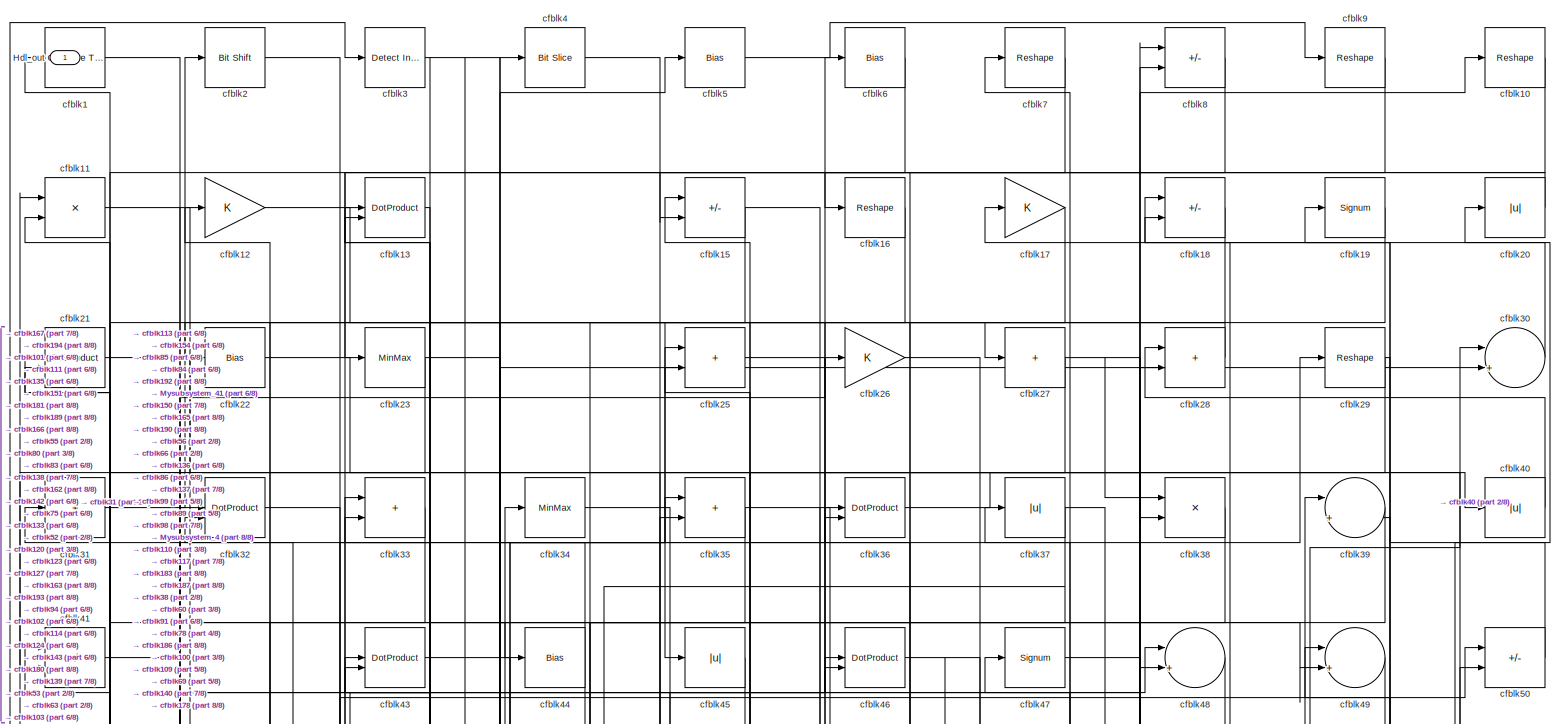
[diagram: root canvas - part 1/8, full width, top band]
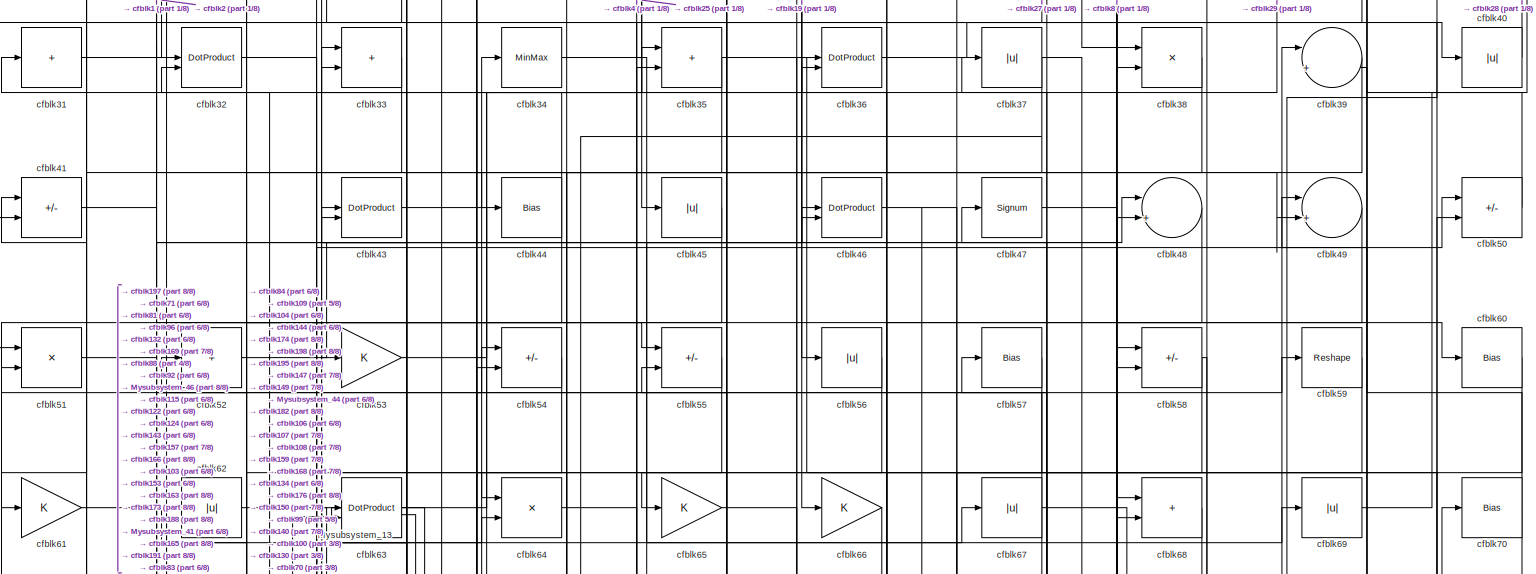
[diagram: root canvas - part 2/8, full width, top band]
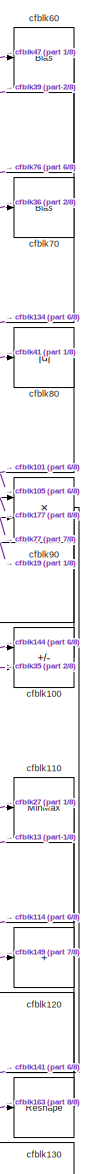
[diagram: root canvas - part 3/8, middle right region]
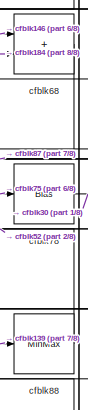
[diagram: root canvas - part 4/8, middle right region]
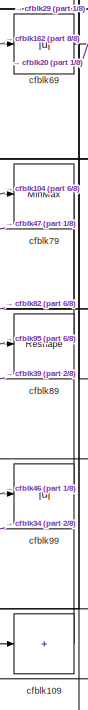
[diagram: root canvas - part 5/8, middle right region]
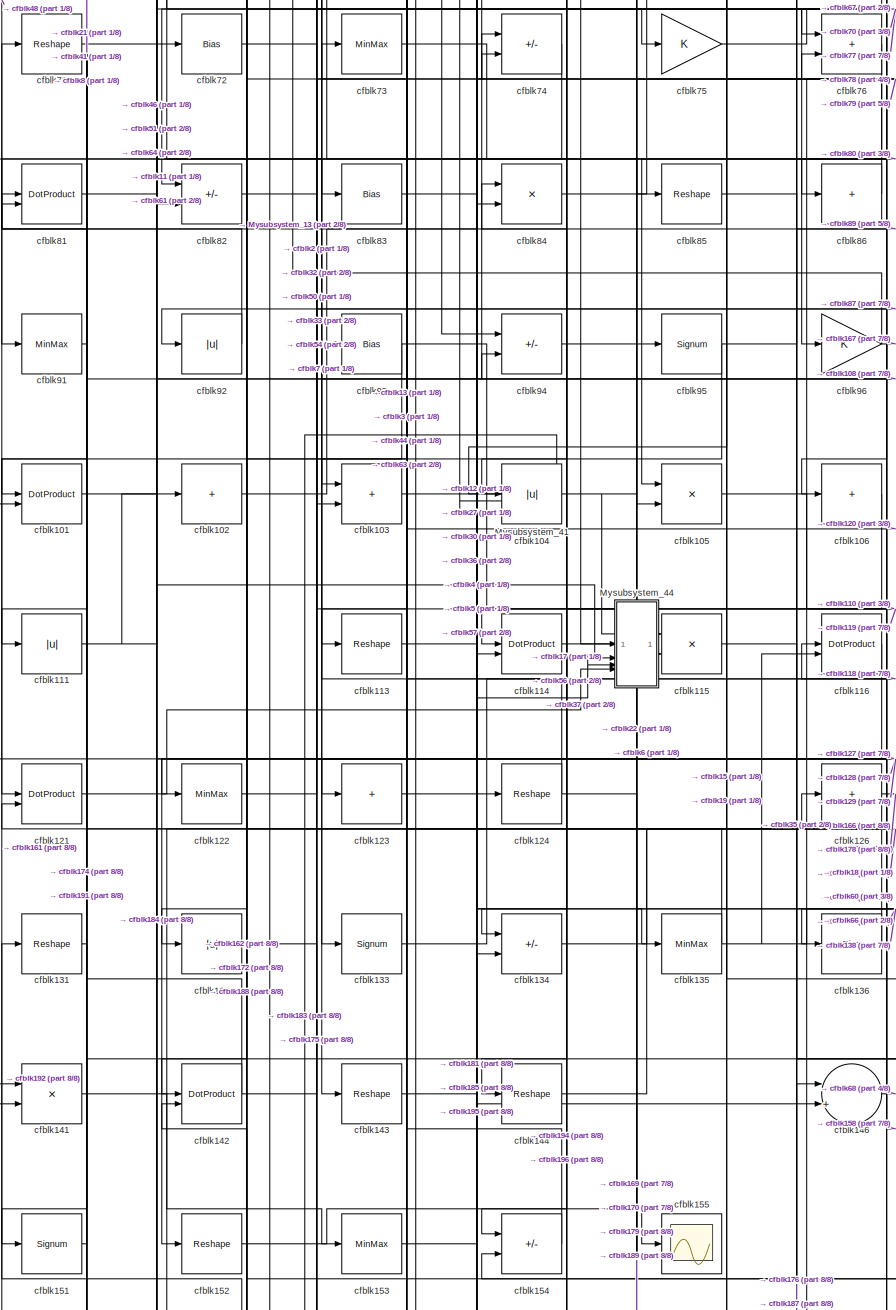
[diagram: root canvas - part 6/8, middle left region]
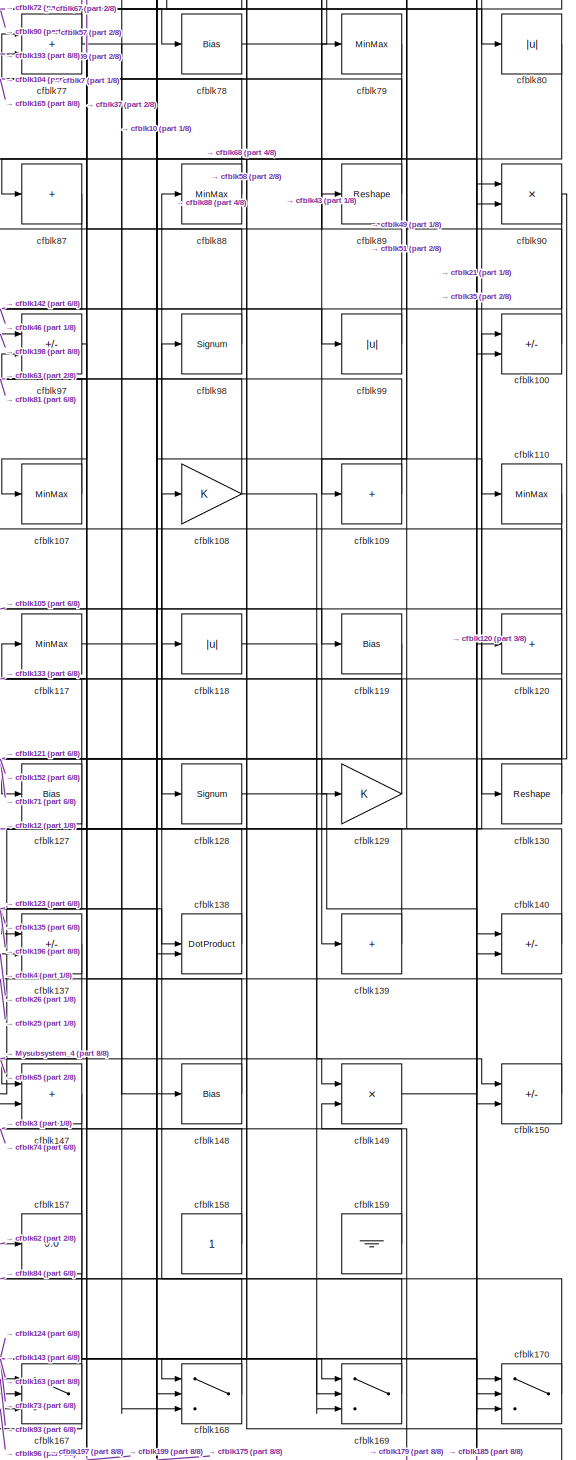
[diagram: root canvas - part 7/8, middle right region]
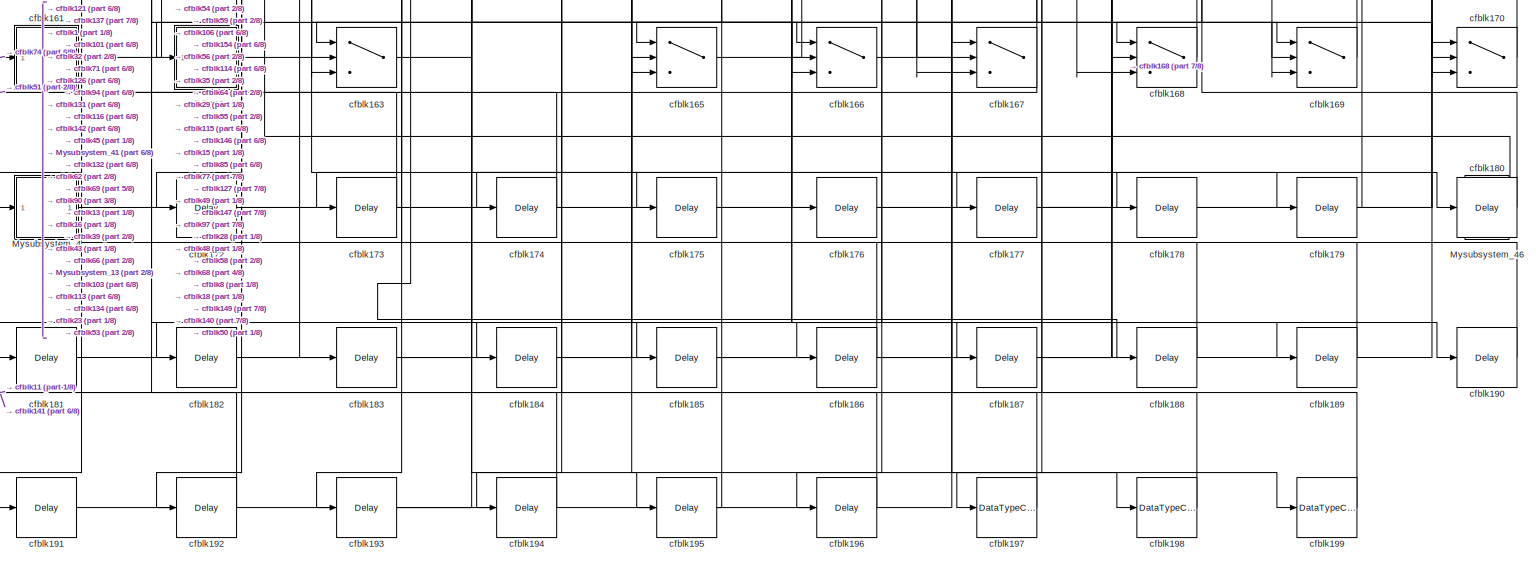
[diagram: root canvas - part 8/8, full width, bottom band]
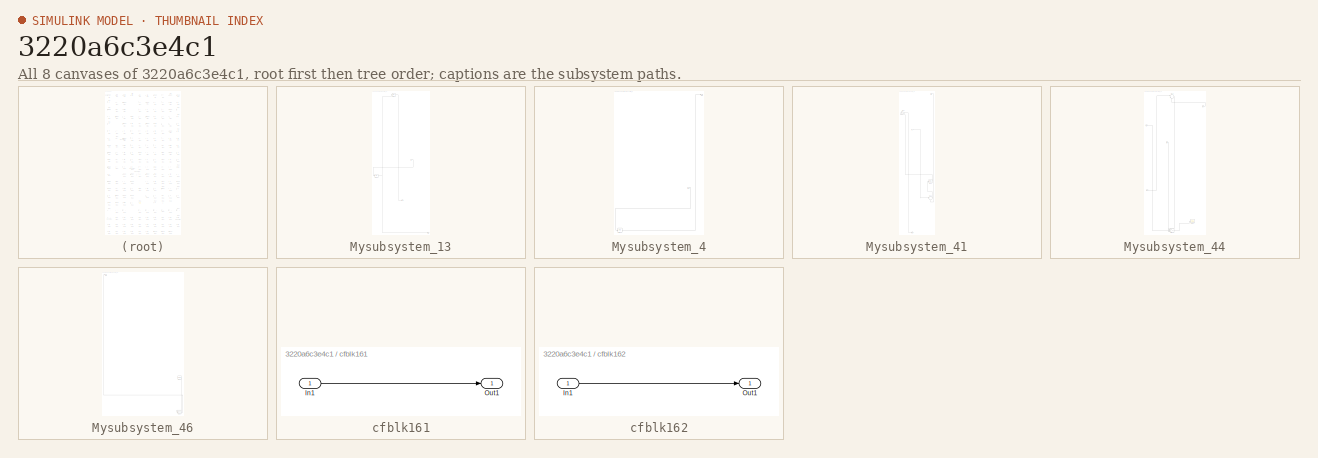
[diagram: thumbnail index - all 8 canvases of the model, root first then tree order]
MODEL slx_3220a6c3e4c1
KIND model
CONFIG AbsTol = auto
CONFIG EnableMultiTasking = off
CONFIG FixedStep = auto
CONFIG MaxStep = auto
CONFIG MinStep = auto
CONFIG RelTol = 1e-3
CONFIG SampleTimeConstraint = Unconstrained
CONFIG SolverName = VariableStepAuto
CONFIG StartTime = 0.0
CONFIG StopTime = 10.0
BLOCK [Outport] Hdl_out
  OutDataTypeStr = uint8
BLOCK [SubSystem] Mysubsystem_13
  RTWFcnName = Mysubsystem_13
  RTWFcnNameOpts = User specified
  RTWFileNameOpts = Use function name
  RTWSystemCode = Reusable function
  TreatAsAtomicUnit = on
BLOCK [Inport] Mysubsystem_13/In1
BLOCK [Outport] Mysubsystem_13/Out1
BLOCK [Outport] Mysubsystem_13/Out2
  Port = 2
BLOCK [Bias] Mysubsystem_13/cfblk112
  Bias = 0.0
  SaturateOnIntegerOverflow = off
BLOCK [Bias] Mysubsystem_13/cfblk14
  Bias = 0.0
  SaturateOnIntegerOverflow = off
BLOCK [SubSystem] Mysubsystem_4
  RTWFcnName = Mysubsystem_4
  RTWFcnNameOpts = User specified
  RTWFileNameOpts = Use function name
  RTWSystemCode = Reusable function
  TreatAsAtomicUnit = on
BLOCK [Inport] Mysubsystem_4/In1
BLOCK [Outport] Mysubsystem_4/Out1
BLOCK [Delay] Mysubsystem_4/cfblk171
  InputPortMap = u0
  SampleTime = 1
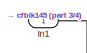
[diagram: Mysubsystem_41 - part 1/4, top right region]
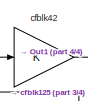
[diagram: Mysubsystem_41 - part 2/4, top left region]
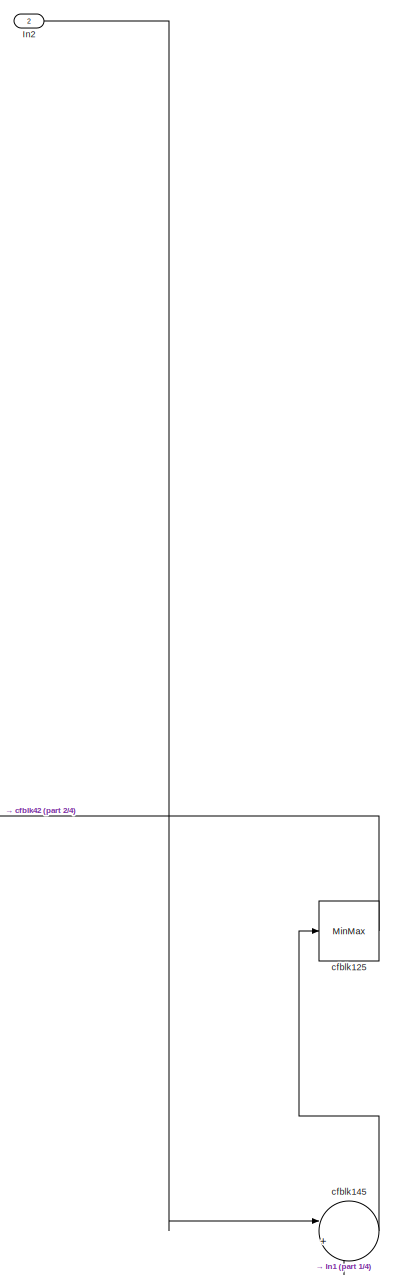
[diagram: Mysubsystem_41 - part 3/4, central region]
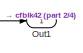
[diagram: Mysubsystem_41 - part 4/4, bottom center region]
BLOCK [SubSystem] Mysubsystem_41
  RTWFcnName = Mysubsystem_41
  RTWFcnNameOpts = User specified
  RTWFileNameOpts = Use function name
  RTWSystemCode = Reusable function
  TreatAsAtomicUnit = on
BLOCK [Inport] Mysubsystem_41/In1
BLOCK [Inport] Mysubsystem_41/In2
  Port = 2
BLOCK [Outport] Mysubsystem_41/Out1
BLOCK [MinMax] Mysubsystem_41/cfblk125
BLOCK [Sum] Mysubsystem_41/cfblk145
  Inputs = |++
BLOCK [Gain] Mysubsystem_41/cfblk42
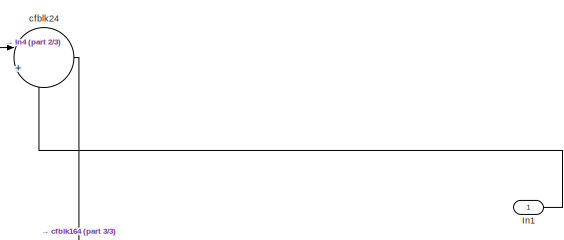
[diagram: Mysubsystem_44 - part 1/3, top right region]
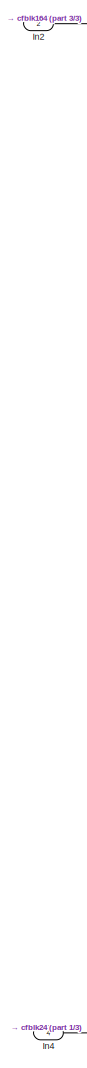
[diagram: Mysubsystem_44 - part 2/3, middle left region]
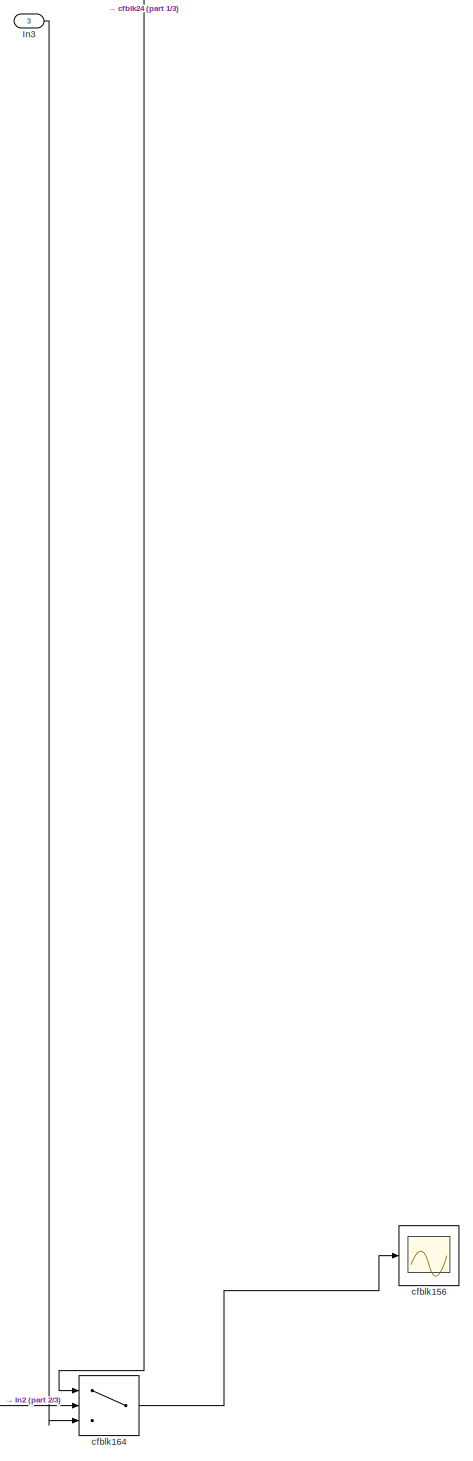
[diagram: Mysubsystem_44 - part 3/3, bottom center region]
BLOCK [SubSystem] Mysubsystem_44
  RTWFcnName = Mysubsystem_44
  RTWFcnNameOpts = User specified
  RTWFileNameOpts = Use function name
  RTWSystemCode = Reusable function
  TreatAsAtomicUnit = on
BLOCK [Inport] Mysubsystem_44/In1
BLOCK [Inport] Mysubsystem_44/In2
  Port = 2
BLOCK [Inport] Mysubsystem_44/In3
  Port = 3
BLOCK [Inport] Mysubsystem_44/In4
  Port = 4
BLOCK [Scope] Mysubsystem_44/cfblk156
  Floating = off
  NumInputPorts = 1
  ScopeSpecificationString = Simulink.scopes.TimeScopeBlockCfg('CurrentConfiguration', extmgr.ConfigurationSet(extmgr.Configuration('Core','General UI',true),extmgr.Configuration('Core','Source UI',true),extmgr.Configuration('Sources','WiredSimulink',true,'DataLoggingVariableName','ScopeData2','DataLoggingSaveFormat','Array','DataLoggingLimitDataPoints',true,'DataLoggingDecimation','1'),extmgr.Configuration('Visuals','Time Do...<+868ch>
BLOCK [Switch] Mysubsystem_44/cfblk164
  InputSameDT = off
  SaturateOnIntegerOverflow = off
BLOCK [Sum] Mysubsystem_44/cfblk24
  Inputs = |++
BLOCK [SubSystem] Mysubsystem_46
  RTWFcnName = Mysubsystem_46
  RTWFcnNameOpts = User specified
  RTWFileNameOpts = Use function name
  RTWSystemCode = Reusable function
  TreatAsAtomicUnit = on
BLOCK [Outport] Mysubsystem_46/Out1
BLOCK [Reference] Mysubsystem_46/cfblk160  REF=hdlsllib/Sources/Counter
Free-Running
  SourceBlock = hdlsllib/Sources/Counter\nFree-Running
  SourceType = Counter Free-Running
BLOCK [DataTypeConversion] Mysubsystem_46/cfblk200
  OutDataTypeStr = uint8
  RndMeth = Floor
  SaturateOnIntegerOverflow = off
BLOCK [Reference] cfblk1  REF=hdlsllib/Logic and Bit
Operations/Compare
To Constant
  SourceBlock = hdlsllib/Logic and Bit\nOperations/Compare\nTo Constant
  SourceType = Compare To Constant
BLOCK [Reshape] cfblk10
BLOCK [Sum] cfblk100
  IconShape = rectangular
  Inputs = +-
  OutDataTypeStr = uint8
BLOCK [DotProduct] cfblk101
  OutDataTypeStr = uint8
BLOCK [Sum] cfblk102
  IconShape = rectangular
  Inputs = +
  OutDataTypeStr = uint8
BLOCK [Sum] cfblk103
  IconShape = rectangular
  OutDataTypeStr = uint8
BLOCK [Abs] cfblk104
  OutDataTypeStr = uint8
  SaturateOnIntegerOverflow = off
BLOCK [Product] cfblk105
  Inputs = */
  OutDataTypeStr = uint8
  RndMeth = Zero
  SaturateOnIntegerOverflow = on
BLOCK [Sum] cfblk106
  IconShape = rectangular
  Inputs = +
  OutDataTypeStr = uint8
BLOCK [MinMax] cfblk107
  OutDataTypeStr = uint8
BLOCK [Gain] cfblk108
  OutDataTypeStr = uint8
BLOCK [Sum] cfblk109
  IconShape = rectangular
  Inputs = +
  OutDataTypeStr = uint8
BLOCK [Product] cfblk11
  Inputs = */
  OutDataTypeStr = uint8
  RndMeth = Zero
  SaturateOnIntegerOverflow = on
BLOCK [MinMax] cfblk110
  OutDataTypeStr = uint8
BLOCK [Abs] cfblk111
  OutDataTypeStr = uint8
  SaturateOnIntegerOverflow = off
BLOCK [Reshape] cfblk113
BLOCK [DotProduct] cfblk114
  OutDataTypeStr = uint8
BLOCK [Product] cfblk115
  Inputs = */
  OutDataTypeStr = uint8
  RndMeth = Zero
  SaturateOnIntegerOverflow = on
BLOCK [DotProduct] cfblk116
  OutDataTypeStr = uint8
BLOCK [MinMax] cfblk117
  OutDataTypeStr = uint8
BLOCK [Abs] cfblk118
  OutDataTypeStr = uint8
  SaturateOnIntegerOverflow = off
BLOCK [Bias] cfblk119
  Bias = 0.0
  SaturateOnIntegerOverflow = off
BLOCK [Gain] cfblk12
  OutDataTypeStr = uint8
BLOCK [Sum] cfblk120
  IconShape = rectangular
  Inputs = +
  OutDataTypeStr = uint8
BLOCK [DotProduct] cfblk121
  OutDataTypeStr = uint8
BLOCK [MinMax] cfblk122
  OutDataTypeStr = uint8
BLOCK [Sum] cfblk123
  IconShape = rectangular
  Inputs = +
  OutDataTypeStr = uint8
BLOCK [Reshape] cfblk124
BLOCK [Sum] cfblk126
  IconShape = rectangular
  Inputs = +
  OutDataTypeStr = uint8
BLOCK [Bias] cfblk127
  Bias = 0.0
  SaturateOnIntegerOverflow = off
BLOCK [Signum] cfblk128
BLOCK [Gain] cfblk129
  OutDataTypeStr = uint8
BLOCK [DotProduct] cfblk13
  OutDataTypeStr = uint8
BLOCK [Reshape] cfblk130
BLOCK [Reshape] cfblk131
BLOCK [Abs] cfblk132
  OutDataTypeStr = uint8
  SaturateOnIntegerOverflow = off
BLOCK [Signum] cfblk133
BLOCK [Sum] cfblk134
  IconShape = rectangular
  Inputs = +-
  OutDataTypeStr = uint8
BLOCK [MinMax] cfblk135
  OutDataTypeStr = uint8
BLOCK [Bias] cfblk136
  Bias = 0.0
  SaturateOnIntegerOverflow = off
BLOCK [Sum] cfblk137
  IconShape = rectangular
  Inputs = +-
  OutDataTypeStr = uint8
BLOCK [DotProduct] cfblk138
  OutDataTypeStr = uint8
BLOCK [Sum] cfblk139
  IconShape = rectangular
  Inputs = +
  OutDataTypeStr = uint8
BLOCK [Sum] cfblk140
  IconShape = rectangular
  Inputs = +-
  OutDataTypeStr = uint8
BLOCK [Product] cfblk141
  Inputs = */
  OutDataTypeStr = uint8
  RndMeth = Zero
  SaturateOnIntegerOverflow = on
BLOCK [DotProduct] cfblk142
  OutDataTypeStr = uint8
BLOCK [Reshape] cfblk143
BLOCK [Reshape] cfblk144
BLOCK [Sum] cfblk146
  Inputs = |++
  OutDataTypeStr = uint8
BLOCK [Sum] cfblk147
  IconShape = rectangular
  OutDataTypeStr = uint8
BLOCK [Bias] cfblk148
  Bias = 0.0
  SaturateOnIntegerOverflow = off
BLOCK [Product] cfblk149
  Inputs = */
  OutDataTypeStr = uint8
  RndMeth = Zero
  SaturateOnIntegerOverflow = on
BLOCK [Sum] cfblk15
  IconShape = rectangular
  Inputs = +-
  OutDataTypeStr = uint8
BLOCK [Sum] cfblk150
  IconShape = rectangular
  Inputs = +-
  OutDataTypeStr = uint8
BLOCK [Signum] cfblk151
BLOCK [Reshape] cfblk152
BLOCK [MinMax] cfblk153
  OutDataTypeStr = uint8
BLOCK [Sum] cfblk154
  IconShape = rectangular
  Inputs = +-
  OutDataTypeStr = uint8
BLOCK [Scope] cfblk155
  Floating = off
  NumInputPorts = 1
  ScopeSpecificationString = Simulink.scopes.TimeScopeBlockCfg('CurrentConfiguration', extmgr.ConfigurationSet(extmgr.Configuration('Core','General UI',true),extmgr.Configuration('Core','Source UI',true),extmgr.Configuration('Sources','WiredSimulink',true,'DataLoggingVariableName','ScopeData2','DataLoggingSaveFormat','Array','DataLoggingLimitDataPoints',true,'DataLoggingDecimation','1'),extmgr.Configuration('Visuals','Time Do...<+868ch>
BLOCK [Display] cfblk157
  Decimation = 1
BLOCK [Constant] cfblk158
  OutDataTypeStr = uint8
  SampleTime = -1
BLOCK [Ground] cfblk159
BLOCK [Reshape] cfblk16
BLOCK [SubSystem] cfblk161
  LibrarySourceBlock = hdlsllib/Ports &\nSubsystems/Subsystem
BLOCK [Inport] cfblk161/In1
BLOCK [Outport] cfblk161/Out1
BLOCK [SubSystem] cfblk162
  LibrarySourceBlock = hdlsllib/Ports &\nSubsystems/Subsystem
BLOCK [Inport] cfblk162/In1
BLOCK [Outport] cfblk162/Out1
BLOCK [Switch] cfblk163
  InputSameDT = off
  OutDataTypeStr = uint8
  SaturateOnIntegerOverflow = off
BLOCK [Switch] cfblk165
  InputSameDT = off
  OutDataTypeStr = uint8
  SaturateOnIntegerOverflow = off
BLOCK [Switch] cfblk166
  InputSameDT = off
  OutDataTypeStr = uint8
  SaturateOnIntegerOverflow = off
BLOCK [Switch] cfblk167
  InputSameDT = off
  OutDataTypeStr = uint8
  SaturateOnIntegerOverflow = off
BLOCK [Switch] cfblk168
  InputSameDT = off
  OutDataTypeStr = uint8
  SaturateOnIntegerOverflow = off
BLOCK [Switch] cfblk169
  InputSameDT = off
  OutDataTypeStr = uint8
  SaturateOnIntegerOverflow = off
BLOCK [Gain] cfblk17
  OutDataTypeStr = uint8
BLOCK [Switch] cfblk170
  InputSameDT = off
  OutDataTypeStr = uint8
  SaturateOnIntegerOverflow = off
BLOCK [Delay] cfblk172
  InputPortMap = u0
  SampleTime = 1
BLOCK [Delay] cfblk173
  InputPortMap = u0
  SampleTime = 1
BLOCK [Delay] cfblk174
  InputPortMap = u0
  SampleTime = 1
BLOCK [Delay] cfblk175
  InputPortMap = u0
  SampleTime = 1
BLOCK [Delay] cfblk176
  InputPortMap = u0
  SampleTime = 1
BLOCK [Delay] cfblk177
  InputPortMap = u0
  SampleTime = 1
BLOCK [Delay] cfblk178
  InputPortMap = u0
  SampleTime = 1
BLOCK [Delay] cfblk179
  InputPortMap = u0
  SampleTime = 1
BLOCK [Sum] cfblk18
  IconShape = rectangular
  Inputs = +-
  OutDataTypeStr = uint8
BLOCK [Delay] cfblk180
  InputPortMap = u0
  SampleTime = 1
BLOCK [Delay] cfblk181
  InputPortMap = u0
  SampleTime = 1
BLOCK [Delay] cfblk182
  InputPortMap = u0
  SampleTime = 1
BLOCK [Delay] cfblk183
  InputPortMap = u0
  SampleTime = 1
BLOCK [Delay] cfblk184
  InputPortMap = u0
  SampleTime = 1
BLOCK [Delay] cfblk185
  InputPortMap = u0
  SampleTime = 1
BLOCK [Delay] cfblk186
  InputPortMap = u0
  SampleTime = 1
BLOCK [Delay] cfblk187
  InputPortMap = u0
  SampleTime = 1
BLOCK [Delay] cfblk188
  InputPortMap = u0
  SampleTime = 1
BLOCK [Delay] cfblk189
  InputPortMap = u0
  SampleTime = 1
BLOCK [Signum] cfblk19
BLOCK [Delay] cfblk190
  InputPortMap = u0
  SampleTime = 1
BLOCK [Delay] cfblk191
  InputPortMap = u0
  SampleTime = 1
BLOCK [Delay] cfblk192
  InputPortMap = u0
  SampleTime = 1
BLOCK [Delay] cfblk193
  InputPortMap = u0
  SampleTime = 1
BLOCK [Delay] cfblk194
  InputPortMap = u0
  SampleTime = 1
BLOCK [Delay] cfblk195
  InputPortMap = u0
  SampleTime = 1
BLOCK [Delay] cfblk196
  InputPortMap = u0
  SampleTime = 1
BLOCK [DataTypeConversion] cfblk197
  OutDataTypeStr = uint8
  RndMeth = Floor
  SaturateOnIntegerOverflow = off
BLOCK [DataTypeConversion] cfblk198
  OutDataTypeStr = uint8
  RndMeth = Floor
  SaturateOnIntegerOverflow = off
BLOCK [DataTypeConversion] cfblk199
  OutDataTypeStr = uint8
  RndMeth = Floor
  SaturateOnIntegerOverflow = off
BLOCK [Reference] cfblk2  REF=hdlsllib/Logic and Bit
Operations/Bit Shift
  SourceBlock = hdlsllib/Logic and Bit\nOperations/Bit Shift
  SourceType = Bit Shift
BLOCK [Abs] cfblk20
  OutDataTypeStr = uint8
  SaturateOnIntegerOverflow = off
BLOCK [DotProduct] cfblk21
  OutDataTypeStr = uint8
BLOCK [Bias] cfblk22
  Bias = 0.0
  SaturateOnIntegerOverflow = off
BLOCK [MinMax] cfblk23
  OutDataTypeStr = uint8
BLOCK [Sum] cfblk25
  IconShape = rectangular
  OutDataTypeStr = uint8
BLOCK [Gain] cfblk26
  OutDataTypeStr = uint8
BLOCK [Sum] cfblk27
  IconShape = rectangular
  Inputs = +
  OutDataTypeStr = uint8
BLOCK [Sum] cfblk28
  IconShape = rectangular
  OutDataTypeStr = uint8
BLOCK [Reshape] cfblk29
BLOCK [Reference] cfblk3  REF=simulink/Logic and Bit
Operations/Detect
Increase
  LibrarySourceBlock = hdlsllib/Logic and Bit\nOperations/Detect\nIncrease
  SourceBlock = simulink/Logic and Bit\nOperations/Detect\nIncrease
  SourceType = Detect Increase
BLOCK [Sum] cfblk30
  Inputs = |++
  OutDataTypeStr = uint8
BLOCK [Sum] cfblk31
  IconShape = rectangular
  Inputs = +
  OutDataTypeStr = uint8
BLOCK [DotProduct] cfblk32
  OutDataTypeStr = uint8
BLOCK [Sum] cfblk33
  IconShape = rectangular
  OutDataTypeStr = uint8
BLOCK [MinMax] cfblk34
  OutDataTypeStr = uint8
BLOCK [Sum] cfblk35
  IconShape = rectangular
  OutDataTypeStr = uint8
BLOCK [DotProduct] cfblk36
  OutDataTypeStr = uint8
BLOCK [Abs] cfblk37
  OutDataTypeStr = uint8
  SaturateOnIntegerOverflow = off
BLOCK [Product] cfblk38
  Inputs = */
  OutDataTypeStr = uint8
  RndMeth = Zero
  SaturateOnIntegerOverflow = on
BLOCK [Sum] cfblk39
  Inputs = |++
  OutDataTypeStr = uint8
BLOCK [Reference] cfblk4  REF=hdlsllib/Logic and Bit
Operations/Bit Slice
  SourceBlock = hdlsllib/Logic and Bit\nOperations/Bit Slice
  SourceType = Bit Slice
BLOCK [Abs] cfblk40
  OutDataTypeStr = uint8
  SaturateOnIntegerOverflow = off
BLOCK [Sum] cfblk41
  IconShape = rectangular
  Inputs = +-
  OutDataTypeStr = uint8
BLOCK [DotProduct] cfblk43
  OutDataTypeStr = uint8
BLOCK [Bias] cfblk44
  Bias = 0.0
  SaturateOnIntegerOverflow = off
BLOCK [Abs] cfblk45
  OutDataTypeStr = uint8
  SaturateOnIntegerOverflow = off
BLOCK [DotProduct] cfblk46
  OutDataTypeStr = uint8
BLOCK [Signum] cfblk47
BLOCK [Sum] cfblk48
  Inputs = |++
  OutDataTypeStr = uint8
BLOCK [Sum] cfblk49
  Inputs = |++
  OutDataTypeStr = uint8
BLOCK [Bias] cfblk5
  Bias = 0.0
  SaturateOnIntegerOverflow = off
BLOCK [Sum] cfblk50
  IconShape = rectangular
  Inputs = +-
  OutDataTypeStr = uint8
BLOCK [Product] cfblk51
  Inputs = */
  OutDataTypeStr = uint8
  RndMeth = Zero
  SaturateOnIntegerOverflow = on
BLOCK [Sum] cfblk52
  IconShape = rectangular
  Inputs = +
  OutDataTypeStr = uint8
BLOCK [Gain] cfblk53
  OutDataTypeStr = uint8
BLOCK [Sum] cfblk54
  IconShape = rectangular
  Inputs = +-
  OutDataTypeStr = uint8
BLOCK [Sum] cfblk55
  IconShape = rectangular
  Inputs = +-
  OutDataTypeStr = uint8
BLOCK [Abs] cfblk56
  OutDataTypeStr = uint8
  SaturateOnIntegerOverflow = off
BLOCK [Bias] cfblk57
  Bias = 0.0
  SaturateOnIntegerOverflow = off
BLOCK [Sum] cfblk58
  IconShape = rectangular
  Inputs = +-
  OutDataTypeStr = uint8
BLOCK [Reshape] cfblk59
BLOCK [Bias] cfblk6
  Bias = 0.0
  SaturateOnIntegerOverflow = off
BLOCK [Bias] cfblk60
  Bias = 0.0
  SaturateOnIntegerOverflow = off
BLOCK [Gain] cfblk61
  OutDataTypeStr = uint8
BLOCK [Abs] cfblk62
  OutDataTypeStr = uint8
  SaturateOnIntegerOverflow = off
BLOCK [DotProduct] cfblk63
  OutDataTypeStr = uint8
BLOCK [Product] cfblk64
  Inputs = */
  OutDataTypeStr = uint8
  RndMeth = Zero
  SaturateOnIntegerOverflow = on
BLOCK [Gain] cfblk65
  OutDataTypeStr = uint8
BLOCK [Gain] cfblk66
  OutDataTypeStr = uint8
BLOCK [Abs] cfblk67
  OutDataTypeStr = uint8
  SaturateOnIntegerOverflow = off
BLOCK [Sum] cfblk68
  IconShape = rectangular
  OutDataTypeStr = uint8
BLOCK [Abs] cfblk69
  OutDataTypeStr = uint8
  SaturateOnIntegerOverflow = off
BLOCK [Reshape] cfblk7
BLOCK [Bias] cfblk70
  Bias = 0.0
  SaturateOnIntegerOverflow = off
BLOCK [Reshape] cfblk71
BLOCK [Bias] cfblk72
  Bias = 0.0
  SaturateOnIntegerOverflow = off
BLOCK [MinMax] cfblk73
  OutDataTypeStr = uint8
BLOCK [Sum] cfblk74
  IconShape = rectangular
  Inputs = +-
  OutDataTypeStr = uint8
BLOCK [Gain] cfblk75
  OutDataTypeStr = uint8
BLOCK [Sum] cfblk76
  IconShape = rectangular
  OutDataTypeStr = uint8
BLOCK [Sum] cfblk77
  IconShape = rectangular
  OutDataTypeStr = uint8
BLOCK [Bias] cfblk78
  Bias = 0.0
  SaturateOnIntegerOverflow = off
BLOCK [MinMax] cfblk79
  OutDataTypeStr = uint8
BLOCK [Sum] cfblk8
  IconShape = rectangular
  Inputs = +-
  OutDataTypeStr = uint8
BLOCK [Abs] cfblk80
  OutDataTypeStr = uint8
  SaturateOnIntegerOverflow = off
BLOCK [DotProduct] cfblk81
  OutDataTypeStr = uint8
BLOCK [Sum] cfblk82
  IconShape = rectangular
  Inputs = +-
  OutDataTypeStr = uint8
BLOCK [Bias] cfblk83
  Bias = 0.0
  SaturateOnIntegerOverflow = off
BLOCK [Product] cfblk84
  Inputs = */
  OutDataTypeStr = uint8
  RndMeth = Zero
  SaturateOnIntegerOverflow = on
BLOCK [Reshape] cfblk85
BLOCK [Sum] cfblk86
  IconShape = rectangular
  Inputs = +
  OutDataTypeStr = uint8
BLOCK [Sum] cfblk87
  IconShape = rectangular
  Inputs = +
  OutDataTypeStr = uint8
BLOCK [MinMax] cfblk88
  OutDataTypeStr = uint8
BLOCK [Reshape] cfblk89
BLOCK [Reshape] cfblk9
BLOCK [Product] cfblk90
  Inputs = */
  OutDataTypeStr = uint8
  RndMeth = Zero
  SaturateOnIntegerOverflow = on
BLOCK [MinMax] cfblk91
  OutDataTypeStr = uint8
BLOCK [Abs] cfblk92
  OutDataTypeStr = uint8
  SaturateOnIntegerOverflow = off
BLOCK [Bias] cfblk93
  Bias = 0.0
  SaturateOnIntegerOverflow = off
BLOCK [Sum] cfblk94
  IconShape = rectangular
  Inputs = +-
  OutDataTypeStr = uint8
BLOCK [Signum] cfblk95
BLOCK [Gain] cfblk96
  OutDataTypeStr = uint8
BLOCK [Sum] cfblk97
  IconShape = rectangular
  Inputs = +-
  OutDataTypeStr = uint8
BLOCK [Signum] cfblk98
BLOCK [Abs] cfblk99
  OutDataTypeStr = uint8
  SaturateOnIntegerOverflow = off
LINE Mysubsystem_13/In1:1 -> Mysubsystem_13/cfblk112:1
NET Mysubsystem_13/cfblk112:1 -> Mysubsystem_13/Out2:1, Mysubsystem_13/cfblk14:1
LINE Mysubsystem_13/cfblk14:1 -> Mysubsystem_13/Out1:1
LINE Mysubsystem_13:1 -> Mysubsystem_41:2
LINE Mysubsystem_13:2 -> cfblk188:1
LINE Mysubsystem_4/In1:1 -> Mysubsystem_4/cfblk171:1
LINE Mysubsystem_4/cfblk171:1 -> Mysubsystem_4/Out1:1
LINE Mysubsystem_41/In1:1 -> Mysubsystem_41/cfblk145:2
LINE Mysubsystem_41/In2:1 -> Mysubsystem_41/cfblk145:1
LINE Mysubsystem_41/cfblk125:1 -> Mysubsystem_41/cfblk42:1
LINE Mysubsystem_41/cfblk145:1 -> Mysubsystem_41/cfblk125:1
LINE Mysubsystem_41/cfblk42:1 -> Mysubsystem_41/Out1:1
LINE Mysubsystem_41:1 -> cfblk183:1
LINE Mysubsystem_44/In1:1 -> Mysubsystem_44/cfblk24:2
LINE Mysubsystem_44/In2:1 -> Mysubsystem_44/cfblk164:2
LINE Mysubsystem_44/In3:1 -> Mysubsystem_44/cfblk164:3
LINE Mysubsystem_44/In4:1 -> Mysubsystem_44/cfblk24:1
LINE Mysubsystem_44/cfblk164:1 -> Mysubsystem_44/cfblk156:1
LINE Mysubsystem_44/cfblk24:1 -> Mysubsystem_44/cfblk164:1
LINE Mysubsystem_46/cfblk160:1 -> Mysubsystem_46/cfblk200:1
LINE Mysubsystem_46/cfblk200:1 -> Mysubsystem_46/Out1:1
LINE Mysubsystem_46:1 -> cfblk32:2
LINE Mysubsystem_4:1 -> cfblk48:2
LINE cfblk100:1 -> cfblk19:1
NET cfblk101:1 -> cfblk184:1, cfblk46:2
LINE cfblk102:1 -> cfblk4:1
NET cfblk103:1 -> cfblk185:1, cfblk33:2
NET cfblk104:1 -> cfblk115:1, cfblk169:3, cfblk79:1
LINE cfblk105:1 -> cfblk119:1
LINE cfblk106:1 -> cfblk194:1
LINE cfblk107:1 -> cfblk63:1
NET cfblk108:1 -> cfblk170:3, cfblk57:1, cfblk81:2
LINE cfblk109:1 -> cfblk34:1
LINE cfblk10:1 -> cfblk86:1
LINE cfblk110:1 -> cfblk114:1
NET cfblk111:1 -> cfblk102:1, cfblk46:1, cfblk48:1
LINE cfblk113:1 -> cfblk195:1
LINE cfblk114:1 -> cfblk189:1
LINE cfblk115:1 -> cfblk176:1
LINE cfblk116:1 -> cfblk172:1
LINE cfblk117:1 -> cfblk10:1
LINE cfblk118:1 -> cfblk150:1
LINE cfblk119:1 -> cfblk152:1
NET cfblk11:1 -> cfblk44:1, cfblk83:1
NET cfblk120:1 -> cfblk13:1, cfblk141:2
NET cfblk121:1 -> Mysubsystem_44:4, cfblk127:1
LINE cfblk122:1 -> cfblk35:1
LINE cfblk123:1 -> cfblk138:1
NET cfblk124:1 -> cfblk170:2, cfblk33:1
LINE cfblk126:1 -> cfblk178:1
NET cfblk127:1 -> cfblk196:1, cfblk43:1
LINE cfblk128:1 -> cfblk170:1
LINE cfblk129:1 -> cfblk108:1
LINE cfblk12:1 -> cfblk124:1
NET cfblk130:1 -> cfblk36:1, cfblk70:1
LINE cfblk131:1 -> cfblk191:1
LINE cfblk132:1 -> cfblk175:1
NET cfblk133:1 -> cfblk118:1, cfblk30:2
LINE cfblk134:1 -> cfblk58:1
NET cfblk135:1 -> cfblk116:2, cfblk137:1, cfblk21:2
LINE cfblk136:1 -> cfblk73:1
LINE cfblk137:1 -> Mysubsystem_4:1
LINE cfblk138:1 -> cfblk12:1
LINE cfblk139:1 -> cfblk88:1
LINE cfblk13:1 -> cfblk123:1
NET cfblk140:1 -> cfblk49:1, cfblk51:2
LINE cfblk141:1 -> cfblk153:1
NET cfblk142:1 -> cfblk41:1, cfblk50:1
NET cfblk143:1 -> cfblk169:2, cfblk5:1
LINE cfblk144:1 -> cfblk100:1
NET cfblk146:1 -> cfblk116:1, cfblk68:1
LINE cfblk147:1 -> cfblk163:2
LINE cfblk148:1 -> cfblk117:1
LINE cfblk149:1 -> cfblk120:1
LINE cfblk150:1 -> cfblk25:2
LINE cfblk151:1 -> cfblk11:2
LINE cfblk152:1 -> cfblk155:1
NET cfblk153:1 -> cfblk146:2, cfblk63:2
LINE cfblk154:1 -> cfblk93:1
LINE cfblk158:1 -> cfblk81:1
LINE cfblk159:1 -> cfblk37:1
NET cfblk15:1 -> cfblk162:1, cfblk190:1
LINE cfblk161/In1:1 -> cfblk161/Out1:1
NET cfblk161:1 -> cfblk126:1, cfblk94:2
LINE cfblk162/In1:1 -> cfblk162/Out1:1
NET cfblk162:1 -> cfblk131:1, cfblk69:1
NET cfblk163:1 -> cfblk13:2, cfblk177:1, cfblk59:1
LINE cfblk165:1 -> cfblk77:1
LINE cfblk166:1 -> cfblk199:1
NET cfblk167:1 -> cfblk3:1, cfblk74:2
LINE cfblk168:1 -> cfblk98:1
LINE cfblk169:1 -> cfblk62:1
NET cfblk16:1 -> cfblk193:1, cfblk45:1
LINE cfblk170:1 -> cfblk84:1
LINE cfblk172:1 -> cfblk146:1
LINE cfblk173:1 -> cfblk51:1
LINE cfblk174:1 -> cfblk121:2
LINE cfblk175:1 -> cfblk168:2
LINE cfblk176:1 -> cfblk58:2
LINE cfblk177:1 -> cfblk90:1
LINE cfblk178:1 -> cfblk50:2
LINE cfblk179:1 -> cfblk149:2
LINE cfblk17:1 -> cfblk154:1
LINE cfblk180:1 -> cfblk18:2
LINE cfblk181:1 -> cfblk134:2
LINE cfblk182:1 -> cfblk35:2
LINE cfblk183:1 -> cfblk8:2
LINE cfblk184:1 -> cfblk68:2
LINE cfblk185:1 -> cfblk140:2
LINE cfblk186:1 -> cfblk165:2
LINE cfblk187:1 -> cfblk28:2
LINE cfblk188:1 -> cfblk142:2
LINE cfblk189:1 -> cfblk1:1
LINE cfblk18:1 -> cfblk136:1
LINE cfblk190:1 -> cfblk43:2
LINE cfblk191:1 -> cfblk54:2
LINE cfblk192:1 -> cfblk141:1
LINE cfblk193:1 -> cfblk77:2
LINE cfblk194:1 -> cfblk11:1
LINE cfblk195:1 -> cfblk55:2
LINE cfblk196:1 -> cfblk154:2
LINE cfblk197:1 -> cfblk32:1
LINE cfblk198:1 -> cfblk97:1
LINE cfblk199:1 -> cfblk97:2
NET cfblk19:1 -> Mysubsystem_41:1, cfblk101:1, cfblk66:1
NET cfblk1:1 -> cfblk166:1, cfblk55:1
LINE cfblk20:1 -> cfblk16:1
LINE cfblk21:1 -> cfblk140:1
LINE cfblk22:1 -> cfblk85:1
NET cfblk23:1 -> cfblk180:1, cfblk181:1
LINE cfblk25:1 -> cfblk56:1
LINE cfblk26:1 -> cfblk137:2
NET cfblk27:1 -> cfblk110:1, cfblk114:2, cfblk38:1, cfblk41:2
NET cfblk28:1 -> cfblk22:1, cfblk27:1
NET cfblk29:1 -> cfblk109:1, cfblk165:1
LINE cfblk2:1 -> cfblk75:1
LINE cfblk30:1 -> cfblk18:1
LINE cfblk31:1 -> cfblk2:1
LINE cfblk32:1 -> cfblk115:2
LINE cfblk33:1 -> cfblk92:1
LINE cfblk34:1 -> cfblk67:1
NET cfblk35:1 -> cfblk100:2, cfblk104:1, cfblk147:1
LINE cfblk36:1 -> cfblk40:1
NET cfblk37:1 -> Mysubsystem_44:1, cfblk144:1, cfblk168:3
LINE cfblk38:1 -> cfblk61:1
LINE cfblk39:1 -> cfblk173:1
NET cfblk3:1 -> cfblk103:1, cfblk49:2, cfblk94:1
LINE cfblk40:1 -> cfblk28:1
NET cfblk41:1 -> cfblk26:1, cfblk80:1
LINE cfblk43:1 -> cfblk139:1
NET cfblk44:1 -> cfblk103:2, cfblk113:1, cfblk21:1
LINE cfblk45:1 -> cfblk192:1
NET cfblk46:1 -> cfblk167:2, cfblk99:1
LINE cfblk47:1 -> cfblk60:1
LINE cfblk48:1 -> cfblk91:1
LINE cfblk49:1 -> cfblk186:1
NET cfblk4:1 -> cfblk138:2, cfblk38:2
LINE cfblk50:1 -> cfblk17:1
NET cfblk51:1 -> Mysubsystem_44:2, cfblk53:1
LINE cfblk52:1 -> cfblk8:1
NET cfblk53:1 -> cfblk165:3, cfblk29:1
LINE cfblk54:1 -> cfblk143:1
LINE cfblk55:1 -> cfblk65:1
NET cfblk56:1 -> cfblk132:1, cfblk174:1, cfblk64:1
LINE cfblk57:1 -> cfblk84:2
NET cfblk58:1 -> cfblk147:2, cfblk168:1
LINE cfblk59:1 -> cfblk107:1
LINE cfblk5:1 -> cfblk9:1
LINE cfblk60:1 -> cfblk76:1
LINE cfblk61:1 -> cfblk96:1
NET cfblk62:1 -> cfblk157:1, cfblk166:2
LINE cfblk63:1 -> cfblk25:1
LINE cfblk64:1 -> cfblk198:1
LINE cfblk65:1 -> cfblk149:1
NET cfblk66:1 -> Mysubsystem_44:3, cfblk163:1, cfblk182:1
NET cfblk67:1 -> cfblk106:1, cfblk150:2, cfblk31:1
LINE cfblk68:1 -> cfblk87:1
LINE cfblk69:1 -> cfblk20:1
LINE cfblk6:1 -> cfblk23:1
NET cfblk70:1 -> cfblk134:1, cfblk39:2
NET cfblk71:1 -> cfblk128:1, cfblk166:3, cfblk64:2, cfblk82:1
LINE cfblk72:1 -> cfblk129:1
NET cfblk73:1 -> cfblk169:1, cfblk95:1
LINE cfblk74:1 -> cfblk161:1
LINE cfblk75:1 -> cfblk78:1
LINE cfblk76:1 -> cfblk105:1
NET cfblk77:1 -> cfblk148:1, cfblk72:1, cfblk90:2
LINE cfblk78:1 -> cfblk30:1
LINE cfblk79:1 -> cfblk82:2
LINE cfblk7:1 -> cfblk133:1
NET cfblk80:1 -> cfblk101:2, cfblk105:2
LINE cfblk81:1 -> cfblk54:1
LINE cfblk82:1 -> cfblk74:1
NET cfblk83:1 -> cfblk135:1, cfblk36:2
LINE cfblk84:1 -> cfblk6:1
LINE cfblk85:1 -> cfblk187:1
LINE cfblk86:1 -> cfblk15:1
LINE cfblk87:1 -> cfblk142:1
LINE cfblk88:1 -> cfblk52:1
LINE cfblk89:1 -> cfblk47:1
LINE cfblk8:1 -> cfblk111:1
NET cfblk90:1 -> cfblk130:1, cfblk163:3
LINE cfblk91:1 -> cfblk151:1
LINE cfblk92:1 -> cfblk71:1
NET cfblk93:1 -> cfblk121:1, cfblk167:1, cfblk76:2
LINE cfblk94:1 -> cfblk179:1
NET cfblk95:1 -> cfblk122:1, cfblk89:1
NET cfblk96:1 -> Mysubsystem_13:1, cfblk167:3
LINE cfblk97:1 -> cfblk197:1
LINE cfblk98:1 -> cfblk7:1
LINE cfblk99:1 -> cfblk39:1
LINE cfblk9:1 -> cfblk15:2
note: NET lines group one-source signal fan-out (src -> all destinations, sorted); 1:1 wires keep LINE
